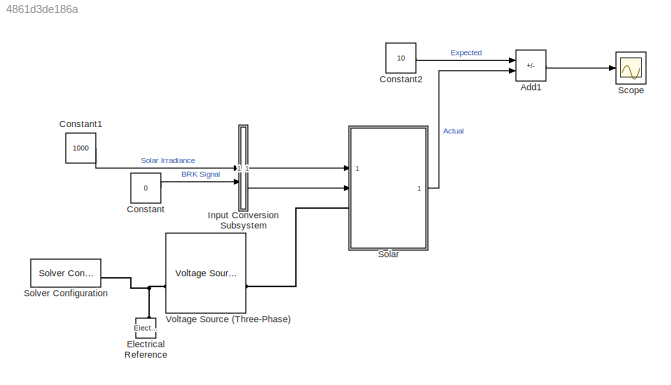
MODEL slx_4861d3de186a
KIND model
CONFIG AbsTol = auto
CONFIG EnableMultiTasking = off
CONFIG FixedStep = auto
CONFIG MaxStep = auto
CONFIG MinStep = auto
CONFIG RelTol = 1e-3
CONFIG SampleTimeConstraint = Unconstrained
CONFIG SolverName = FixedStepAuto
CONFIG StartTime = 0.0
CONFIG StopTime = 10.0
BLOCK [Sum] Add1
  IconShape = rectangular
  Inputs = +-
BLOCK [Constant] Constant
  Value = 0
BLOCK [Constant] Constant1
  Value = 1000
BLOCK [Constant] Constant2
  Value = 10
BLOCK [Reference] Electrical Reference  REF=fl_lib/Electrical/Electrical Elements/Electrical Reference
  NameLocation = right
  SourceBlock = fl_lib/Electrical/Electrical Elements/Electrical Reference
  SourceType = Electrical Reference
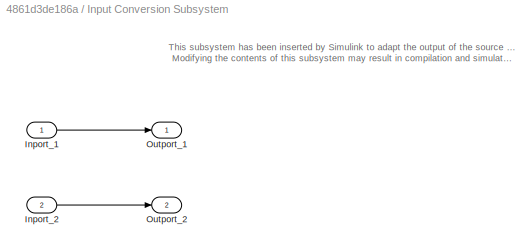
BLOCK [SubSystem] Input Conversion Subsystem
  AttributesFormatString = %<Description>
  Description = Signal spec.\nand routing
  Permissions = ReadOnly
  PermitHierarchicalResolution = ExplicitOnly
  Tag = __SLT_ICS__
  TreatAsGroupedWhenPropagatingVariantConditions = off
  UserDataPersistent = on
BLOCK [Inport] Input Conversion Subsystem/Inport_1
BLOCK [Inport] Input Conversion Subsystem/Inport_2
  Port = 2
BLOCK [Outport] Input Conversion Subsystem/Outport_1
BLOCK [Outport] Input Conversion Subsystem/Outport_2
  Port = 2
BLOCK [Scope] Scope
  ActiveDisplayYMaximum = 11.24887
  ActiveDisplayYMinimum = -1.22985
  Floating = off
  GraphicalSettings = {"GraphicalSettings":{"LegacySettings":true,"Style":{"Style":{"AxesColor":"[0 0 0]","ChannelNames":[""],"ColorOrder":"[1 0.909803921568627 0.392156862745098;0.149019607843137 0.549019607843137 0.866666666666667;0.96078431372549 0.466666666666667 0.16078431372549;0.286274509803922 0.858823529411765 0.250980392156863;0.752941176470588 0.36078431372549 0.984313725490196;0.423529411764706 0.9568627450...<+457ch>
  MultipleDisplayCache = [{"MaxYLimMag":11.24887,"MaxYLimReal":11.24887,"MinYLimMag":0,"MinYLimReal":-1.22985,"PlotAsMagnitudePhase":false,"ShowGrid":true,"ShowLegend":false,"Title":"%<SignalLabel>","YLabel":""}]
  NumInputPorts = 1
  WasSavedAsWebScope = on
BLOCK [SubSystem] Solar
  MPPTIrradiance = [0	50	100	150	200	250	300	350	400	450	500	550	600	650	700	750	800	850	900	950	1000]
  MPPTVoltage = [0	24.8912000000000	26.3576000000000	27.1848000000000	27.7864000000000	28.2376000000000	28.5760000000000	28.8768000000000	29.1400000000000	29.3656000000000	29.5536000000000	29.7416000000000	29.8920000000000	30.0424000000000	30.1552000000000	30.2680000000000	30.3808000000000	30.4560000000000	30.5688000000000	30.6440000000000	30.7192000000000]
  RTWSystemCode = Reusable function
  ReferencedSubsystem = Solar
  Voc = 37.6
  frequency = 60
  maxSolarIrradiance = 1000
  panelOutput = 0.25
  ratedVoltage = 1000
  solarRating = 10
  windingRatio = 1
BLOCK [Reference] Solver Configuration  REF=nesl_utility/Solver
Configuration
  SourceBlock = nesl_utility/Solver\nConfiguration
  SourceType = Solver\nConfiguration
BLOCK [Reference] Voltage Source (Three-Phase)  REF=ee_lib/Sources/Voltage
Source
(Three-Phase)
  SourceBlock = ee_lib/Sources/Voltage\nSource\n(Three-Phase)
  SourceType = Voltage\nSource\n(Three-Phase)
ANNOTATION Input Conversion Subsystem: This subsystem has been inserted by Simulink to adapt the output of the source blocks to the interface required by the harnessed component. Modifying the contents of this subsystem may result in compilation and simulation failure.
LINE Add1:1 -> Scope:1
LINE Constant1:1 -> Input Conversion Subsystem:1
LINE Constant2:1 -> Add1:1
LINE Constant:1 -> Input Conversion Subsystem:2
LINE Input Conversion Subsystem/Inport_1:1 -> Input Conversion Subsystem/Outport_1:1
LINE Input Conversion Subsystem/Inport_2:1 -> Input Conversion Subsystem/Outport_2:1
LINE Input Conversion Subsystem:1 -> Solar:1
LINE Input Conversion Subsystem:2 -> Solar:2
LINE Solar:1 -> Add1:2
PNET net1: Electrical Reference:LConn1 -- Solver Configuration:RConn1 -- Voltage Source (Three-Phase):LConn1
PLINE Solar:LConn1 -- Voltage Source (Three-Phase):RConn1
note: PNET lines group multi-terminal physical nets as a canonical sorted terminal list (undirected conserving connections); 2-terminal nets keep the pairwise PLINE form
